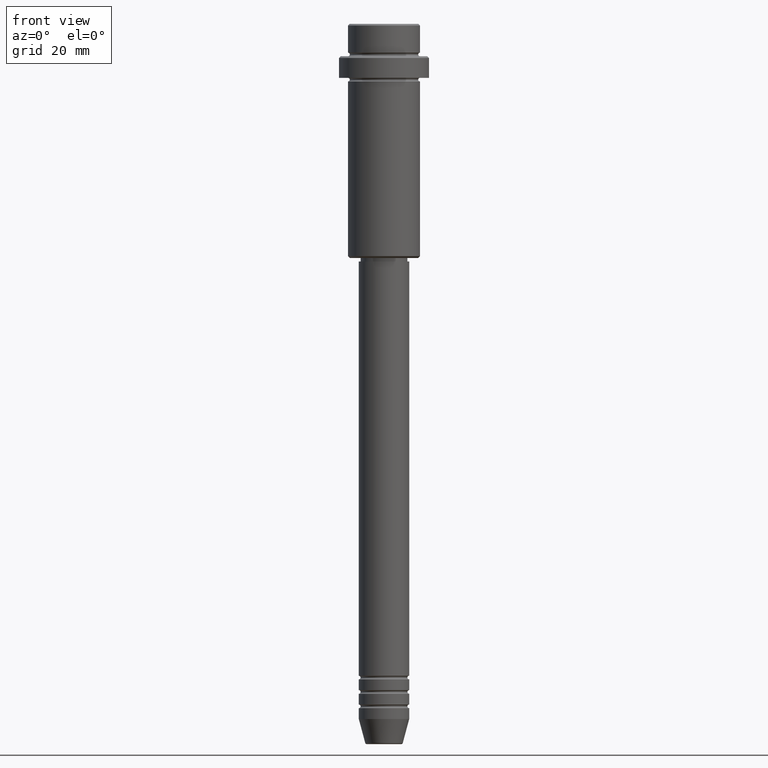
[diagram: clean part render]
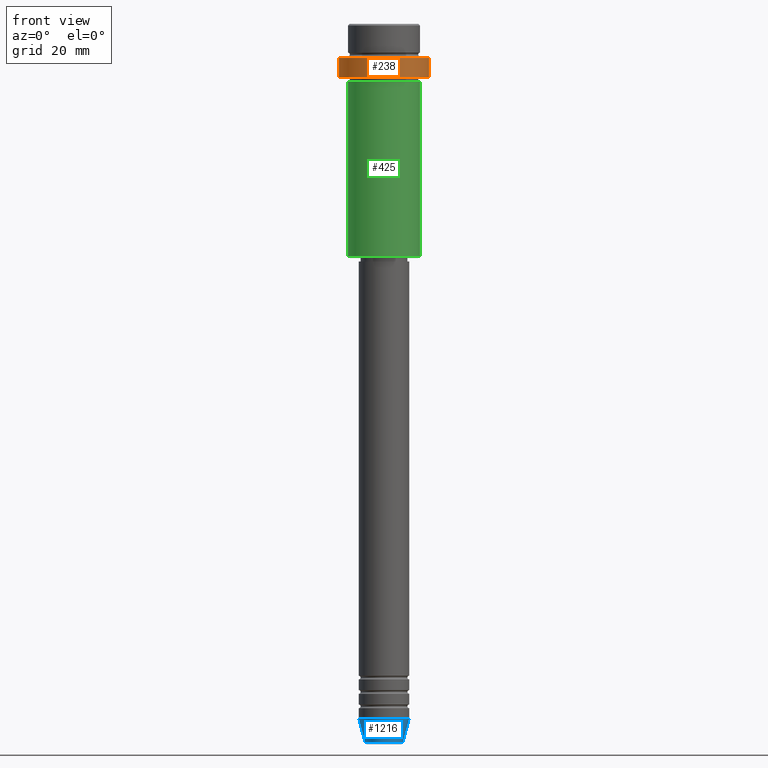
[diagram: same view with three faces highlighted in distinct colors, each labeled with its STEP entity id]
A machine part, front view with three faces highlighted in distinct colors.
Their STEP definitions:

[orange] entity #238 — the highlighted cylindrical surface (partial cylindrical patch) has radius 12.5 mm, axis along (-0, -0, 1).
#19 = AXIS2_PLACEMENT_3D ( 'NONE', #1287, #301, #1178 ) ;
#78 = DIRECTION ( 'NONE',  ( 0.000000000000000000, 0.000000000000000000, -1.000000000000000000 ) ) ;
#97 = EDGE_CURVE ( 'NONE', #1036, #457, #293, .T. ) ;
#193 = EDGE_CURVE ( 'NONE', #658, #1169, #347, .T. ) ;
#216 = CARTESIAN_POINT ( 'NONE',  ( 12.50000000000000000, 0.000000000000000000, -15.00000000000000000 ) ) ;
#238 = ADVANCED_FACE ( 'NONE', ( #870 ), #1307, .T. ) ;
#293 = LINE ( 'NONE', #743, #388 ) ;
#301 = DIRECTION ( 'NONE',  ( -0.000000000000000000, -0.000000000000000000, 1.000000000000000000 ) ) ;
#324 = CARTESIAN_POINT ( 'NONE',  ( 0.000000000000000000, 0.000000000000000000, 0.000000000000000000 ) ) ;
#330 = CARTESIAN_POINT ( 'NONE',  ( -12.50000000000000000, 1.530808498934191521E-15, -15.00000000000000000 ) ) ;
#347 = LINE ( 'NONE', #989, #755 ) ;
#360 = CARTESIAN_POINT ( 'NONE',  ( -12.50000000000000000, 1.530808498934191521E-15, -9.500000000000005329 ) ) ;
#387 = CIRCLE ( 'NONE', #412, 12.50000000000000000 ) ;
#388 = VECTOR ( 'NONE', #1179, 1000.000000000000000 ) ;
#403 = CARTESIAN_POINT ( 'NONE',  ( 12.50000000000000000, 0.000000000000000000, -9.500000000000005329 ) ) ;
#412 = AXIS2_PLACEMENT_3D ( 'NONE', #1256, #78, #729 ) ;
#438 = AXIS2_PLACEMENT_3D ( 'NONE', #324, #662, #998 ) ;
#457 = VERTEX_POINT ( 'NONE', #403 ) ;
#494 = ORIENTED_EDGE ( 'NONE', *, *, #910, .T. ) ;
#516 = EDGE_CURVE ( 'NONE', #658, #1036, #527, .T. ) ;
#527 = CIRCLE ( 'NONE', #19, 12.50000000000000000 ) ;
#564 = ORIENTED_EDGE ( 'NONE', *, *, #97, .T. ) ;
#658 = VERTEX_POINT ( 'NONE', #330 ) ;
#662 = DIRECTION ( 'NONE',  ( -0.000000000000000000, -0.000000000000000000, 1.000000000000000000 ) ) ;
#703 = ORIENTED_EDGE ( 'NONE', *, *, #516, .T. ) ;
#729 = DIRECTION ( 'NONE',  ( 1.000000000000000000, 0.000000000000000000, 0.000000000000000000 ) ) ;
#743 = CARTESIAN_POINT ( 'NONE',  ( 12.50000000000000000, 0.000000000000000000, 0.000000000000000000 ) ) ;
#755 = VECTOR ( 'NONE', #786, 1000.000000000000000 ) ;
#786 = DIRECTION ( 'NONE',  ( -0.000000000000000000, -0.000000000000000000, 1.000000000000000000 ) ) ;
#870 = FACE_OUTER_BOUND ( 'NONE', #1243, .T. ) ;
#910 = EDGE_CURVE ( 'NONE', #457, #1169, #387, .T. ) ;
#989 = CARTESIAN_POINT ( 'NONE',  ( -12.50000000000000000, 1.530808498934191521E-15, 0.000000000000000000 ) ) ;
#998 = DIRECTION ( 'NONE',  ( 1.000000000000000000, 0.000000000000000000, 0.000000000000000000 ) ) ;
#1036 = VERTEX_POINT ( 'NONE', #216 ) ;
#1169 = VERTEX_POINT ( 'NONE', #360 ) ;
#1178 = DIRECTION ( 'NONE',  ( 1.000000000000000000, 0.000000000000000000, 0.000000000000000000 ) ) ;
#1179 = DIRECTION ( 'NONE',  ( -0.000000000000000000, -0.000000000000000000, 1.000000000000000000 ) ) ;
#1243 = EDGE_LOOP ( 'NONE', ( #1324, #703, #564, #494 ) ) ;
#1256 = CARTESIAN_POINT ( 'NONE',  ( 0.000000000000000000, 0.000000000000000000, -9.500000000000005329 ) ) ;
#1287 = CARTESIAN_POINT ( 'NONE',  ( 0.000000000000000000, 0.000000000000000000, -15.00000000000000000 ) ) ;
#1307 = CYLINDRICAL_SURFACE ( 'NONE', #438, 12.50000000000000000 ) ;
#1324 = ORIENTED_EDGE ( 'NONE', *, *, #193, .F. ) ;

[blue] entity #1216 — the highlighted conical surface has half-angle 15 deg.
#53 = ORIENTED_EDGE ( 'NONE', *, *, #578, .F. ) ;
#61 = DIRECTION ( 'NONE',  ( -0.000000000000000000, -0.000000000000000000, 1.000000000000000000 ) ) ;
#110 = AXIS2_PLACEMENT_3D ( 'NONE', #611, #61, #268 ) ;
#120 = CARTESIAN_POINT ( 'NONE',  ( -7.000000000000000000, 8.572527594031473190E-16, -193.0000000000000000 ) ) ;
#133 = VECTOR ( 'NONE', #226, 1000.000000000000000 ) ;
#217 = VERTEX_POINT ( 'NONE', #447 ) ;
#226 = DIRECTION ( 'NONE',  ( -0.2588190451025214056, 3.169619151431772953E-17, 0.9659258262890680902 ) ) ;
#250 = CIRCLE ( 'NONE', #1062, 7.000000000000000000 ) ;
#268 = DIRECTION ( 'NONE',  ( 1.000000000000000000, 0.000000000000000000, 0.000000000000000000 ) ) ;
#269 = LINE ( 'NONE', #378, #599 ) ;
#341 = FACE_OUTER_BOUND ( 'NONE', #763, .T. ) ;
#348 = EDGE_CURVE ( 'NONE', #1357, #1148, #269, .T. ) ;
#374 = ORIENTED_EDGE ( 'NONE', *, *, #1385, .F. ) ;
#378 = CARTESIAN_POINT ( 'NONE',  ( 7.000000000000000000, 0.000000000000000000, -193.0000000000000000 ) ) ;
#399 = DIRECTION ( 'NONE',  ( -0.000000000000000000, -0.000000000000000000, 1.000000000000000000 ) ) ;
#413 = CONICAL_SURFACE ( 'NONE', #1016, 7.000000000000000000, 0.2617993877991501295 ) ;
#447 = CARTESIAN_POINT ( 'NONE',  ( -7.000000000000000000, 8.572527594031473190E-16, -193.0000000000000000 ) ) ;
#473 = DIRECTION ( 'NONE',  ( 0.2588190451025214056, 0.000000000000000000, 0.9659258262890680902 ) ) ;
#499 = DIRECTION ( 'NONE',  ( 1.000000000000000000, 0.000000000000000000, 0.000000000000000000 ) ) ;
#511 = CARTESIAN_POINT ( 'NONE',  ( 0.000000000000000000, 0.000000000000000000, -193.0000000000000000 ) ) ;
#537 = CARTESIAN_POINT ( 'NONE',  ( 7.000000000000000000, 0.000000000000000000, -193.0000000000000000 ) ) ;
#558 = ORIENTED_EDGE ( 'NONE', *, *, #348, .T. ) ;
#578 = EDGE_CURVE ( 'NONE', #1415, #217, #672, .T. ) ;
#599 = VECTOR ( 'NONE', #473, 1000.000000000000000 ) ;
#611 = CARTESIAN_POINT ( 'NONE',  ( 0.000000000000000000, 0.000000000000000000, -199.6294095225512706 ) ) ;
#672 = LINE ( 'NONE', #120, #133 ) ;
#763 = EDGE_LOOP ( 'NONE', ( #53, #1137, #558, #374 ) ) ;
#783 = DIRECTION ( 'NONE',  ( 1.000000000000000000, 0.000000000000000000, 0.000000000000000000 ) ) ;
#826 = CIRCLE ( 'NONE', #110, 5.223655072137191269 ) ;
#951 = EDGE_CURVE ( 'NONE', #1415, #1357, #826, .T. ) ;
#1016 = AXIS2_PLACEMENT_3D ( 'NONE', #1248, #1132, #783 ) ;
#1062 = AXIS2_PLACEMENT_3D ( 'NONE', #511, #399, #499 ) ;
#1132 = DIRECTION ( 'NONE',  ( -0.000000000000000000, -0.000000000000000000, 1.000000000000000000 ) ) ;
#1137 = ORIENTED_EDGE ( 'NONE', *, *, #951, .T. ) ;
#1146 = CARTESIAN_POINT ( 'NONE',  ( 5.223655072137191269, 0.000000000000000000, -199.6294095225512706 ) ) ;
#1148 = VERTEX_POINT ( 'NONE', #537 ) ;
#1175 = CARTESIAN_POINT ( 'NONE',  ( -5.223655072137191269, 7.484830028987061160E-16, -199.6294095225512706 ) ) ;
#1216 = ADVANCED_FACE ( 'NONE', ( #341 ), #413, .T. ) ;
#1248 = CARTESIAN_POINT ( 'NONE',  ( 0.000000000000000000, 0.000000000000000000, -193.0000000000000000 ) ) ;
#1357 = VERTEX_POINT ( 'NONE', #1146 ) ;
#1385 = EDGE_CURVE ( 'NONE', #217, #1148, #250, .T. ) ;
#1415 = VERTEX_POINT ( 'NONE', #1175 ) ;

[green] entity #425 — the highlighted cylindrical surface (edge-blend (fillet) strip) has radius 10 mm, axis along (-0, -0, 1).
#31 = EDGE_CURVE ( 'NONE', #196, #267, #80, .T. ) ;
#56 = EDGE_CURVE ( 'NONE', #267, #1096, #1262, .T. ) ;
#77 = VERTEX_POINT ( 'NONE', #843 ) ;
#80 = LINE ( 'NONE', #961, #804 ) ;
#93 = DIRECTION ( 'NONE',  ( -0.000000000000000000, -0.000000000000000000, 1.000000000000000000 ) ) ;
#117 = ORIENTED_EDGE ( 'NONE', *, *, #1242, .T. ) ;
#148 = CARTESIAN_POINT ( 'NONE',  ( 0.000000000000000000, 0.000000000000000000, -64.50000000000000000 ) ) ;
#156 = AXIS2_PLACEMENT_3D ( 'NONE', #148, #589, #923 ) ;
#196 = VERTEX_POINT ( 'NONE', #673 ) ;
#227 = VECTOR ( 'NONE', #1336, 1000.000000000000000 ) ;
#263 = CARTESIAN_POINT ( 'NONE',  ( -9.999999999999998224, 1.224646799147353059E-15, -16.00000000000000000 ) ) ;
#267 = VERTEX_POINT ( 'NONE', #263 ) ;
#398 = CARTESIAN_POINT ( 'NONE',  ( 0.000000000000000000, 0.000000000000000000, -16.00000000000000000 ) ) ;
#425 = ADVANCED_FACE ( 'NONE', ( #503 ), #618, .T. ) ;
#503 = FACE_OUTER_BOUND ( 'NONE', #1155, .T. ) ;
#512 = ORIENTED_EDGE ( 'NONE', *, *, #750, .T. ) ;
#520 = DIRECTION ( 'NONE',  ( -0.000000000000000000, -0.000000000000000000, 1.000000000000000000 ) ) ;
#589 = DIRECTION ( 'NONE',  ( -0.000000000000000000, -0.000000000000000000, 1.000000000000000000 ) ) ;
#618 = CYLINDRICAL_SURFACE ( 'NONE', #782, 9.999999999999998224 ) ;
#628 = DIRECTION ( 'NONE',  ( -0.000000000000000000, -0.000000000000000000, 1.000000000000000000 ) ) ;
#659 = CARTESIAN_POINT ( 'NONE',  ( 9.999999999999998224, 0.000000000000000000, -16.00000000000000000 ) ) ;
#673 = CARTESIAN_POINT ( 'NONE',  ( -9.999999999999998224, 1.224646799147353059E-15, -64.50000000000000000 ) ) ;
#676 = CARTESIAN_POINT ( 'NONE',  ( 9.999999999999998224, 0.000000000000000000, 0.000000000000000000 ) ) ;
#715 = AXIS2_PLACEMENT_3D ( 'NONE', #398, #628, #1378 ) ;
#750 = EDGE_CURVE ( 'NONE', #196, #77, #1391, .T. ) ;
#782 = AXIS2_PLACEMENT_3D ( 'NONE', #960, #520, #858 ) ;
#804 = VECTOR ( 'NONE', #93, 1000.000000000000000 ) ;
#843 = CARTESIAN_POINT ( 'NONE',  ( 9.999999999999998224, 0.000000000000000000, -64.50000000000000000 ) ) ;
#858 = DIRECTION ( 'NONE',  ( 1.000000000000000000, 0.000000000000000000, 0.000000000000000000 ) ) ;
#923 = DIRECTION ( 'NONE',  ( -1.000000000000000000, 0.000000000000000000, 0.000000000000000000 ) ) ;
#960 = CARTESIAN_POINT ( 'NONE',  ( 0.000000000000000000, 0.000000000000000000, 0.000000000000000000 ) ) ;
#961 = CARTESIAN_POINT ( 'NONE',  ( -9.999999999999998224, 1.224646799147353059E-15, 0.000000000000000000 ) ) ;
#1046 = ORIENTED_EDGE ( 'NONE', *, *, #31, .F. ) ;
#1096 = VERTEX_POINT ( 'NONE', #659 ) ;
#1115 = LINE ( 'NONE', #676, #227 ) ;
#1155 = EDGE_LOOP ( 'NONE', ( #1046, #512, #117, #1276 ) ) ;
#1242 = EDGE_CURVE ( 'NONE', #77, #1096, #1115, .T. ) ;
#1262 = CIRCLE ( 'NONE', #715, 9.999999999999998224 ) ;
#1276 = ORIENTED_EDGE ( 'NONE', *, *, #56, .F. ) ;
#1336 = DIRECTION ( 'NONE',  ( -0.000000000000000000, -0.000000000000000000, 1.000000000000000000 ) ) ;
#1378 = DIRECTION ( 'NONE',  ( 1.000000000000000000, 0.000000000000000000, 0.000000000000000000 ) ) ;
#1391 = CIRCLE ( 'NONE', #156, 9.999999999999998224 ) ;